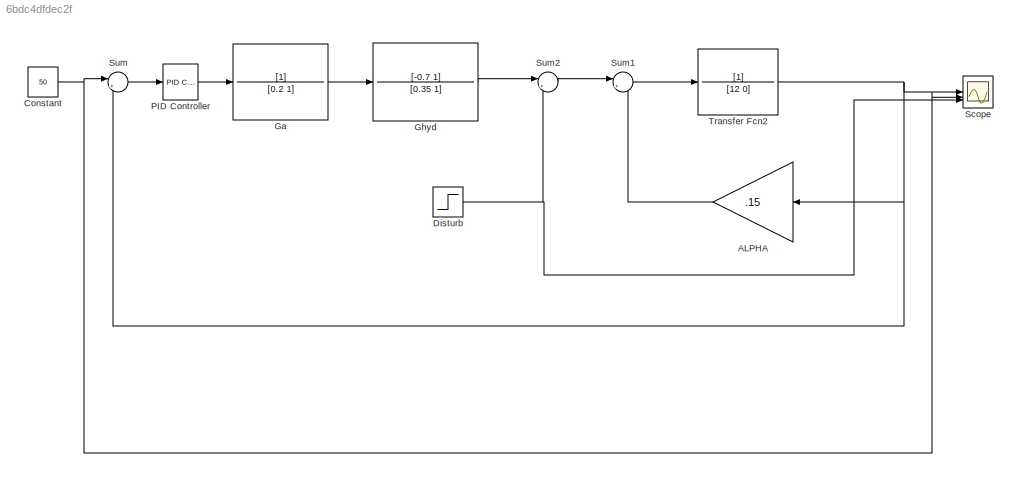
MODEL slx_6bdc4dfdec2f
KIND model
CONFIG AbsTol = auto
CONFIG EnableMultiTasking = off
CONFIG FixedStep = auto
CONFIG MaxStep = auto
CONFIG MinStep = auto
CONFIG RelTol = 1e-3
CONFIG SampleTimeConstraint = Unconstrained
CONFIG SolverName = VariableStepAuto
CONFIG StartTime = 0.0
CONFIG StopTime = 300
BLOCK [Gain] ALPHA
  Gain = .15
  NameLocation = top
BLOCK [Constant] Constant
  Value = 50
BLOCK [Step] Disturb
  After = 3.06*10^8
  Before = 3.4*10^8
  SampleTime = 0
  Time = 200
BLOCK [TransferFcn] Ga
  Denominator = [0.2 1]
BLOCK [TransferFcn] Ghyd
  Denominator = [0.35 1]
  Numerator = [-0.7 1]
BLOCK [Reference] PID Controller  REF=slpidlib/PID Controller
  LibrarySourceBlock = simulink/Continuous/PID Controller
  SourceBlock = slpidlib/PID Controller
  SourceType = PID 1dof
BLOCK [Scope] Scope
  Floating = off
  NumInputPorts = 3
  ScopeSpecificationString = Simulink.scopes.TimeScopeBlockCfg('CurrentConfiguration', extmgr.ConfigurationSet(extmgr.Configuration('Core','General UI',true),extmgr.Configuration('Core','Source UI',true),extmgr.Configuration('Sources','WiredSimulink',true),extmgr.Configuration('Visuals','Time Domain',true,'SerializedDisplays',{struct('MinYLimReal','5165129.11703','MaxYLimReal','6420529.67868','YLabelReal','','MinYLimMag','516...<+1448ch>
BLOCK [Sum] Sum
  Inputs = |+-
BLOCK [Sum] Sum1
  Inputs = |+-
BLOCK [Sum] Sum2
  Inputs = |+-
BLOCK [TransferFcn] Transfer Fcn2
  Denominator = [12  0]
LINE ALPHA:1 -> Sum1:2
NET Constant:1 -> Scope:2, Sum:1
NET Disturb:1 -> Scope:3, Sum2:2
LINE Ga:1 -> Ghyd:1
LINE Ghyd:1 -> Sum2:1
LINE PID Controller:1 -> Ga:1
LINE Sum1:1 -> Transfer Fcn2:1
LINE Sum2:1 -> Sum1:1
LINE Sum:1 -> PID Controller:1
NET Transfer Fcn2:1 -> ALPHA:1, Scope:1, Sum:2
note: NET lines group one-source signal fan-out (src -> all destinations, sorted); 1:1 wires keep LINE
